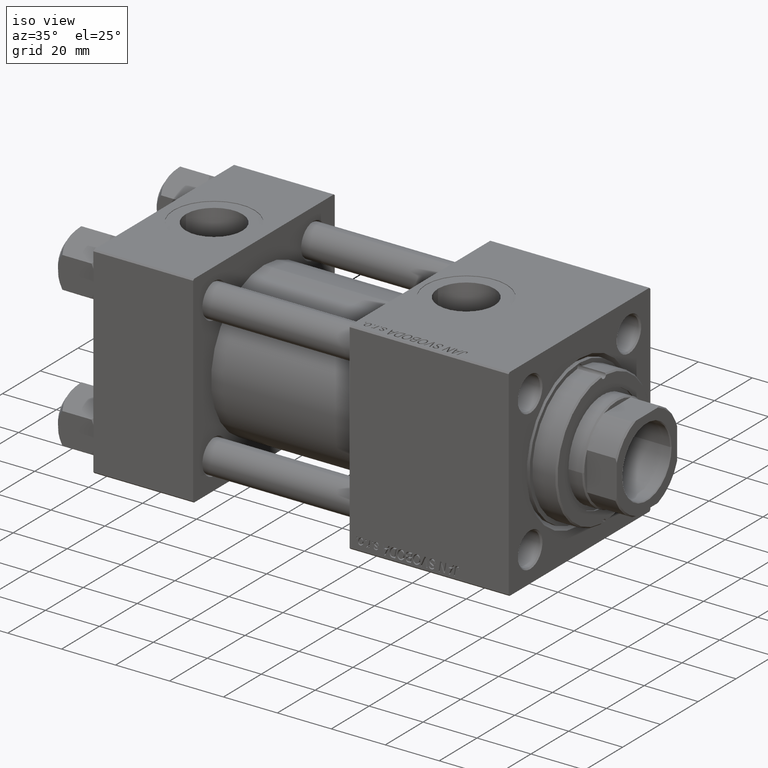
[diagram: clean part render]
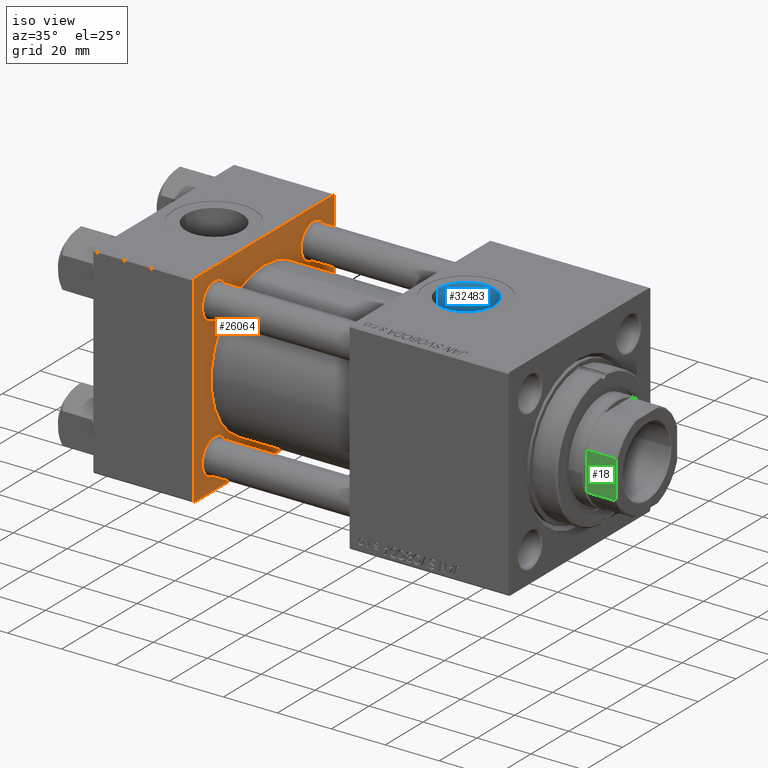
[diagram: same view with three faces highlighted in distinct colors, each labeled with its STEP entity id]
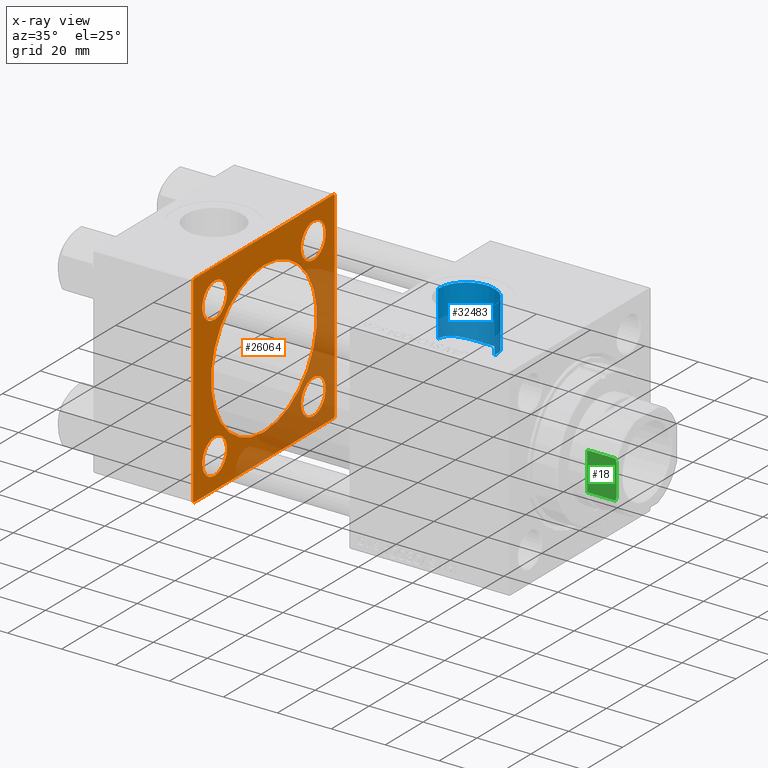
[diagram: x-ray of the same camera — body ghosted, the three highlighted faces saturated]
A machine part, iso view with three faces highlighted in distinct colors.
The next image is the same camera in x-ray (body ghosted, the three faces saturated) — at least one of them is partly hidden behind the body in this view.
Their STEP definitions:

[orange] entity #26064 — the highlighted planar face has unit normal (-1, 0, 0).
#815 = DIRECTION ( 'NONE',  ( 1.000000000000000000, -0.000000000000000000, 0.000000000000000000 ) ) ;
#1337 = DIRECTION ( 'NONE',  ( -0.000000000000000000, -0.7071067811865474617, -0.7071067811865474617 ) ) ;
#1445 = EDGE_CURVE ( 'NONE', #45019, #11600, #33661, .T. ) ;
#1635 = AXIS2_PLACEMENT_3D ( 'NONE', #13740, #44375, #19711 ) ;
#1783 = FACE_BOUND ( 'NONE', #27757, .T. ) ;
#1915 = CIRCLE ( 'NONE', #49958, 28.00000000000000000 ) ;
#2444 = CIRCLE ( 'NONE', #30951, 6.500000000000030198 ) ;
#2538 = EDGE_CURVE ( 'NONE', #39165, #22679, #7704, .T. ) ;
#2786 = AXIS2_PLACEMENT_3D ( 'NONE', #9745, #36550, #28889 ) ;
#3070 = CARTESIAN_POINT ( 'NONE',  ( 37.00000000000000000, -26.14999999999999147, 26.15000000000000924 ) ) ;
#3178 = ORIENTED_EDGE ( 'NONE', *, *, #31151, .T. ) ;
#3328 = DIRECTION ( 'NONE',  ( -1.000000000000000000, 0.000000000000000000, -0.000000000000000000 ) ) ;
#4633 = DIRECTION ( 'NONE',  ( 1.000000000000000000, -0.000000000000000000, 0.000000000000000000 ) ) ;
#4734 = AXIS2_PLACEMENT_3D ( 'NONE', #20117, #32352, #27264 ) ;
#5357 = FACE_BOUND ( 'NONE', #47574, .T. ) ;
#5376 = AXIS2_PLACEMENT_3D ( 'NONE', #29157, #21244, #25820 ) ;
#6044 = EDGE_CURVE ( 'NONE', #25301, #7935, #42506, .T. ) ;
#7016 = CARTESIAN_POINT ( 'NONE',  ( 37.00000000000000000, -26.14999999999999147, -19.65000000000000924 ) ) ;
#7033 = CARTESIAN_POINT ( 'NONE',  ( 37.00000000000000000, -37.00000000000002132, -37.50000000000000711 ) ) ;
#7090 = AXIS2_PLACEMENT_3D ( 'NONE', #47476, #815, #12521 ) ;
#7483 = AXIS2_PLACEMENT_3D ( 'NONE', #3070, #3328, #45414 ) ;
#7704 = LINE ( 'NONE', #11256, #35093 ) ;
#7935 = VERTEX_POINT ( 'NONE', #43436 ) ;
#7939 = EDGE_CURVE ( 'NONE', #22679, #18021, #47255, .T. ) ;
#8077 = CARTESIAN_POINT ( 'NONE',  ( 37.00000000000000000, 36.99999999999997868, -37.50000000000000000 ) ) ;
#8178 = DIRECTION ( 'NONE',  ( -0.000000000000000000, 0.7071067811865474617, 0.7071067811865474617 ) ) ;
#8834 = LINE ( 'NONE', #48090, #16321 ) ;
#9223 = VECTOR ( 'NONE', #39842, 1000.000000000000114 ) ;
#9745 = CARTESIAN_POINT ( 'NONE',  ( 37.00000000000000000, -26.14999999999999147, -26.15000000000000924 ) ) ;
#9995 = DIRECTION ( 'NONE',  ( 0.000000000000000000, 0.000000000000000000, 1.000000000000000000 ) ) ;
#10810 = CARTESIAN_POINT ( 'NONE',  ( 37.00000000000000000, 36.99999999999999289, 37.50000000000000000 ) ) ;
#10943 = DIRECTION ( 'NONE',  ( 0.000000000000000000, -1.000000000000000000, -9.251858538542972814E-17 ) ) ;
#11256 = CARTESIAN_POINT ( 'NONE',  ( 37.00000000000000000, 37.49999999999999289, 37.50000000000000000 ) ) ;
#11309 = LINE ( 'NONE', #18706, #45929 ) ;
#11480 = CIRCLE ( 'NONE', #41640, 6.500000000000030198 ) ;
#11542 = ORIENTED_EDGE ( 'NONE', *, *, #17813, .F. ) ;
#11557 = ORIENTED_EDGE ( 'NONE', *, *, #20305, .T. ) ;
#11600 = VERTEX_POINT ( 'NONE', #7033 ) ;
#12035 = CARTESIAN_POINT ( 'NONE',  ( 37.00000000000000000, 26.14999999999999858, -32.65000000000003411 ) ) ;
#12107 = CARTESIAN_POINT ( 'NONE',  ( 37.00000000000000000, 26.14999999999999858, 32.65000000000004121 ) ) ;
#12299 = CARTESIAN_POINT ( 'NONE',  ( 37.00000000000000000, -37.50000000000000711, 36.99999999999999289 ) ) ;
#12521 = DIRECTION ( 'NONE',  ( 0.000000000000000000, 0.000000000000000000, 1.000000000000000000 ) ) ;
#12744 = ORIENTED_EDGE ( 'NONE', *, *, #14803, .F. ) ;
#12758 = CARTESIAN_POINT ( 'NONE',  ( 37.00000000000000000, -2.602085213965210642E-15, 0.000000000000000000 ) ) ;
#12871 = EDGE_CURVE ( 'NONE', #44883, #39165, #20453, .T. ) ;
#13144 = DIRECTION ( 'NONE',  ( 0.000000000000000000, 9.251858538542971581E-17, -1.000000000000000000 ) ) ;
#13243 = VECTOR ( 'NONE', #17260, 1000.000000000000000 ) ;
#13475 = ORIENTED_EDGE ( 'NONE', *, *, #46439, .T. ) ;
#13672 = EDGE_CURVE ( 'NONE', #27521, #11600, #41224, .T. ) ;
#13740 = CARTESIAN_POINT ( 'NONE',  ( 37.00000000000000000, 0.000000000000000000, 0.000000000000000000 ) ) ;
#14703 = VECTOR ( 'NONE', #1337, 1000.000000000000114 ) ;
#14803 = EDGE_CURVE ( 'NONE', #31656, #20217, #1915, .T. ) ;
#15593 = DIRECTION ( 'NONE',  ( 0.000000000000000000, -1.000000000000000000, -9.251858538542971581E-17 ) ) ;
#15684 = ORIENTED_EDGE ( 'NONE', *, *, #1445, .F. ) ;
#16105 = EDGE_CURVE ( 'NONE', #43837, #22451, #43663, .T. ) ;
#16321 = VECTOR ( 'NONE', #13144, 1000.000000000000000 ) ;
#17070 = EDGE_LOOP ( 'NONE', ( #12744, #11542 ) ) ;
#17260 = DIRECTION ( 'NONE',  ( 0.000000000000000000, 0.7071067811865524577, -0.7071067811865426878 ) ) ;
#17813 = EDGE_CURVE ( 'NONE', #20217, #31656, #31507, .T. ) ;
#18004 = CARTESIAN_POINT ( 'NONE',  ( 37.00000000000000000, -37.00000000000002132, -37.50000000000000711 ) ) ;
#18021 = VERTEX_POINT ( 'NONE', #26753 ) ;
#18706 = CARTESIAN_POINT ( 'NONE',  ( 37.00000000000000000, 37.49999999999999289, 37.50000000000000000 ) ) ;
#18931 = EDGE_LOOP ( 'NONE', ( #28279, #32556 ) ) ;
#19293 = DIRECTION ( 'NONE',  ( 0.000000000000000000, 0.000000000000000000, 1.000000000000000000 ) ) ;
#19711 = DIRECTION ( 'NONE',  ( -0.000000000000000000, 0.000000000000000000, 1.000000000000000000 ) ) ;
#20117 = CARTESIAN_POINT ( 'NONE',  ( 37.00000000000000000, -26.14999999999999147, -26.15000000000000924 ) ) ;
#20199 = CARTESIAN_POINT ( 'NONE',  ( 37.00000000000000000, -37.00000000000000711, 37.49999999999999289 ) ) ;
#20209 = CARTESIAN_POINT ( 'NONE',  ( 37.00000000000000000, 36.99999999999999289, 37.50000000000000000 ) ) ;
#20217 = VERTEX_POINT ( 'NONE', #46402 ) ;
#20305 = EDGE_CURVE ( 'NONE', #24228, #48644, #38915, .T. ) ;
#20453 = LINE ( 'NONE', #20209, #9223 ) ;
#20603 = ORIENTED_EDGE ( 'NONE', *, *, #6044, .T. ) ;
#21244 = DIRECTION ( 'NONE',  ( -1.000000000000000000, 0.000000000000000000, -0.000000000000000000 ) ) ;
#21405 = EDGE_CURVE ( 'NONE', #23197, #48202, #28348, .T. ) ;
#21668 = CIRCLE ( 'NONE', #5376, 6.500000000000008882 ) ;
#21930 = CARTESIAN_POINT ( 'NONE',  ( 37.00000000000000000, -2.602085213965210642E-15, 28.00000000000000000 ) ) ;
#22451 = VERTEX_POINT ( 'NONE', #12035 ) ;
#22503 = ORIENTED_EDGE ( 'NONE', *, *, #2538, .T. ) ;
#22679 = VERTEX_POINT ( 'NONE', #20199 ) ;
#23134 = CARTESIAN_POINT ( 'NONE',  ( 37.00000000000000000, 26.14999999999999858, 26.15000000000000213 ) ) ;
#23197 = VERTEX_POINT ( 'NONE', #12107 ) ;
#23795 = CARTESIAN_POINT ( 'NONE',  ( 37.00000000000000000, -26.14999999999999147, -32.65000000000001279 ) ) ;
#23890 = DIRECTION ( 'NONE',  ( -1.000000000000000000, 0.000000000000000000, -0.000000000000000000 ) ) ;
#24228 = VERTEX_POINT ( 'NONE', #23795 ) ;
#24761 = ORIENTED_EDGE ( 'NONE', *, *, #32879, .T. ) ;
#25301 = VERTEX_POINT ( 'NONE', #32382 ) ;
#25478 = FACE_OUTER_BOUND ( 'NONE', #44547, .T. ) ;
#25820 = DIRECTION ( 'NONE',  ( 0.000000000000000000, 0.000000000000000000, 1.000000000000000000 ) ) ;
#25904 = EDGE_CURVE ( 'NONE', #48202, #23197, #2444, .T. ) ;
#26064 = ADVANCED_FACE ( 'NONE', ( #1783, #5357, #32639, #33142, #35293, #25478 ), #48692, .F. ) ;
#26400 = CIRCLE ( 'NONE', #2786, 6.500000000000002665 ) ;
#26753 = CARTESIAN_POINT ( 'NONE',  ( 37.00000000000000000, -37.50000000000000711, 36.99999999999999289 ) ) ;
#27264 = DIRECTION ( 'NONE',  ( 0.000000000000000000, 0.000000000000000000, 1.000000000000000000 ) ) ;
#27521 = VERTEX_POINT ( 'NONE', #47481 ) ;
#27757 = EDGE_LOOP ( 'NONE', ( #11557, #29953 ) ) ;
#28279 = ORIENTED_EDGE ( 'NONE', *, *, #25904, .T. ) ;
#28348 = CIRCLE ( 'NONE', #35731, 6.500000000000030198 ) ;
#28837 = DIRECTION ( 'NONE',  ( 0.000000000000000000, 0.000000000000000000, 1.000000000000000000 ) ) ;
#28889 = DIRECTION ( 'NONE',  ( 0.000000000000000000, 0.000000000000000000, 1.000000000000000000 ) ) ;
#29157 = CARTESIAN_POINT ( 'NONE',  ( 37.00000000000000000, -26.14999999999999147, 26.15000000000000924 ) ) ;
#29953 = ORIENTED_EDGE ( 'NONE', *, *, #43978, .T. ) ;
#30130 = ORIENTED_EDGE ( 'NONE', *, *, #7939, .T. ) ;
#30452 = DIRECTION ( 'NONE',  ( -1.000000000000000000, 0.000000000000000000, -0.000000000000000000 ) ) ;
#30951 = AXIS2_PLACEMENT_3D ( 'NONE', #42682, #30452, #39100 ) ;
#31151 = EDGE_CURVE ( 'NONE', #18021, #27521, #8834, .T. ) ;
#31217 = ORIENTED_EDGE ( 'NONE', *, *, #16105, .T. ) ;
#31507 = CIRCLE ( 'NONE', #7090, 28.00000000000000000 ) ;
#31645 = LINE ( 'NONE', #47193, #46674 ) ;
#31656 = VERTEX_POINT ( 'NONE', #21930 ) ;
#31680 = ORIENTED_EDGE ( 'NONE', *, *, #12871, .T. ) ;
#32048 = CARTESIAN_POINT ( 'NONE',  ( 37.00000000000000000, 26.14999999999999858, -26.15000000000000213 ) ) ;
#32352 = DIRECTION ( 'NONE',  ( -1.000000000000000000, 0.000000000000000000, -0.000000000000000000 ) ) ;
#32382 = CARTESIAN_POINT ( 'NONE',  ( 37.00000000000000000, -26.14999999999999147, 19.65000000000000213 ) ) ;
#32556 = ORIENTED_EDGE ( 'NONE', *, *, #21405, .T. ) ;
#32639 = FACE_BOUND ( 'NONE', #50144, .T. ) ;
#32710 = CARTESIAN_POINT ( 'NONE',  ( 37.00000000000000000, 26.14999999999999858, -26.15000000000000213 ) ) ;
#32879 = EDGE_CURVE ( 'NONE', #22451, #43837, #11480, .T. ) ;
#33142 = FACE_BOUND ( 'NONE', #18931, .T. ) ;
#33661 = LINE ( 'NONE', #41298, #40707 ) ;
#34554 = DIRECTION ( 'NONE',  ( 0.000000000000000000, 0.000000000000000000, -1.000000000000000000 ) ) ;
#35093 = VECTOR ( 'NONE', #15593, 1000.000000000000000 ) ;
#35293 = FACE_BOUND ( 'NONE', #17070, .T. ) ;
#35731 = AXIS2_PLACEMENT_3D ( 'NONE', #23134, #42019, #19293 ) ;
#36457 = EDGE_CURVE ( 'NONE', #45019, #39321, #31645, .T. ) ;
#36550 = DIRECTION ( 'NONE',  ( -1.000000000000000000, 0.000000000000000000, -0.000000000000000000 ) ) ;
#37292 = ORIENTED_EDGE ( 'NONE', *, *, #40003, .F. ) ;
#37447 = CARTESIAN_POINT ( 'NONE',  ( 37.00000000000000000, 26.14999999999999858, 19.64999999999997016 ) ) ;
#37968 = AXIS2_PLACEMENT_3D ( 'NONE', #32048, #23890, #39691 ) ;
#38915 = CIRCLE ( 'NONE', #4734, 6.500000000000002665 ) ;
#39100 = DIRECTION ( 'NONE',  ( 0.000000000000000000, 0.000000000000000000, 1.000000000000000000 ) ) ;
#39165 = VERTEX_POINT ( 'NONE', #10810 ) ;
#39321 = VERTEX_POINT ( 'NONE', #40536 ) ;
#39691 = DIRECTION ( 'NONE',  ( 0.000000000000000000, 0.000000000000000000, 1.000000000000000000 ) ) ;
#39842 = DIRECTION ( 'NONE',  ( 0.000000000000000000, -0.7071067811865474617, 0.7071067811865474617 ) ) ;
#40003 = EDGE_CURVE ( 'NONE', #44883, #39321, #11309, .T. ) ;
#40349 = DIRECTION ( 'NONE',  ( -1.000000000000000000, 0.000000000000000000, -0.000000000000000000 ) ) ;
#40536 = CARTESIAN_POINT ( 'NONE',  ( 37.00000000000000000, 37.49999999999999289, -36.99999999999998579 ) ) ;
#40707 = VECTOR ( 'NONE', #10943, 1000.000000000000000 ) ;
#41213 = ORIENTED_EDGE ( 'NONE', *, *, #13672, .T. ) ;
#41224 = LINE ( 'NONE', #18004, #13243 ) ;
#41298 = CARTESIAN_POINT ( 'NONE',  ( 37.00000000000000000, 37.49999999999999289, -37.50000000000000000 ) ) ;
#41640 = AXIS2_PLACEMENT_3D ( 'NONE', #32710, #40349, #9995 ) ;
#42019 = DIRECTION ( 'NONE',  ( -1.000000000000000000, 0.000000000000000000, -0.000000000000000000 ) ) ;
#42506 = CIRCLE ( 'NONE', #7483, 6.500000000000008882 ) ;
#42682 = CARTESIAN_POINT ( 'NONE',  ( 37.00000000000000000, 26.14999999999999858, 26.15000000000000213 ) ) ;
#43436 = CARTESIAN_POINT ( 'NONE',  ( 37.00000000000000000, -26.14999999999999147, 32.65000000000001990 ) ) ;
#43663 = CIRCLE ( 'NONE', #37968, 6.500000000000030198 ) ;
#43837 = VERTEX_POINT ( 'NONE', #47022 ) ;
#43978 = EDGE_CURVE ( 'NONE', #48644, #24228, #26400, .T. ) ;
#44076 = CARTESIAN_POINT ( 'NONE',  ( 37.00000000000000000, 37.49999999999999289, 37.00000000000000000 ) ) ;
#44375 = DIRECTION ( 'NONE',  ( -1.000000000000000000, 0.000000000000000000, -0.000000000000000000 ) ) ;
#44547 = EDGE_LOOP ( 'NONE', ( #15684, #48122, #37292, #31680, #22503, #30130, #3178, #41213 ) ) ;
#44883 = VERTEX_POINT ( 'NONE', #44076 ) ;
#45019 = VERTEX_POINT ( 'NONE', #8077 ) ;
#45414 = DIRECTION ( 'NONE',  ( 0.000000000000000000, 0.000000000000000000, 1.000000000000000000 ) ) ;
#45929 = VECTOR ( 'NONE', #34554, 1000.000000000000000 ) ;
#46402 = CARTESIAN_POINT ( 'NONE',  ( 37.00000000000000000, 8.269258236473776482E-16, -28.00000000000000000 ) ) ;
#46439 = EDGE_CURVE ( 'NONE', #7935, #25301, #21668, .T. ) ;
#46674 = VECTOR ( 'NONE', #8178, 1000.000000000000114 ) ;
#47022 = CARTESIAN_POINT ( 'NONE',  ( 37.00000000000000000, 26.14999999999999858, -19.64999999999997371 ) ) ;
#47193 = CARTESIAN_POINT ( 'NONE',  ( 37.00000000000000000, 37.49999999999999289, -36.99999999999998579 ) ) ;
#47255 = LINE ( 'NONE', #12299, #14703 ) ;
#47476 = CARTESIAN_POINT ( 'NONE',  ( 37.00000000000000000, -2.602085213965210642E-15, 0.000000000000000000 ) ) ;
#47481 = CARTESIAN_POINT ( 'NONE',  ( 37.00000000000000000, -37.50000000000000000, -37.00000000000003553 ) ) ;
#47574 = EDGE_LOOP ( 'NONE', ( #24761, #31217 ) ) ;
#48090 = CARTESIAN_POINT ( 'NONE',  ( 37.00000000000000000, -37.50000000000000711, 37.49999999999999289 ) ) ;
#48122 = ORIENTED_EDGE ( 'NONE', *, *, #36457, .T. ) ;
#48202 = VERTEX_POINT ( 'NONE', #37447 ) ;
#48644 = VERTEX_POINT ( 'NONE', #7016 ) ;
#48692 = PLANE ( 'NONE',  #1635 ) ;
#49958 = AXIS2_PLACEMENT_3D ( 'NONE', #12758, #4633, #28837 ) ;
#50144 = EDGE_LOOP ( 'NONE', ( #20603, #13475 ) ) ;

[blue] entity #32483 — the highlighted cylindrical surface (edge-blend (fillet) strip) has radius 10.48 mm, axis along (0, 0, -1).
#1383 = CYLINDRICAL_SURFACE ( 'NONE', #47364, 10.48000000000000398 ) ;
#2756 = CARTESIAN_POINT ( 'NONE',  ( 101.5199999999999960, -8.522187221514314994E-15, 20.50000000000000000 ) ) ;
#2999 = CARTESIAN_POINT ( 'NONE',  ( 122.4800000000000040, -5.655464058400799734E-15, 60.29999999999998295 ) ) ;
#3032 = CARTESIAN_POINT ( 'NONE',  ( 103.4994615249995888, 6.139005141183927705, 19.56143105420016681 ) ) ;
#3290 = CARTESIAN_POINT ( 'NONE',  ( 122.4111999661127896, 1.387573566795220259, 20.46456553337858608 ) ) ;
#3457 = VECTOR ( 'NONE', #6572, 1000.000000000000000 ) ;
#3545 = CARTESIAN_POINT ( 'NONE',  ( 119.8841991131332492, 6.936938536499984487, 19.29736706481580910 ) ) ;
#3801 = CARTESIAN_POINT ( 'NONE',  ( 109.5844666488367523, 10.20370056431730532, 17.78034809007779415 ) ) ;
#4054 = CARTESIAN_POINT ( 'NONE',  ( 122.2039809949709621, 2.414784284089436461, 20.36018829921812312 ) ) ;
#6572 = DIRECTION ( 'NONE',  ( 0.000000000000000000, 0.000000000000000000, -1.000000000000000000 ) ) ;
#6653 = ORIENTED_EDGE ( 'NONE', *, *, #34667, .T. ) ;
#7106 = CARTESIAN_POINT ( 'NONE',  ( 103.7041966693601154, 6.412812401408074514, 19.47310258086861623 ) ) ;
#7364 = CARTESIAN_POINT ( 'NONE',  ( 104.3608080663192226, 7.182330360178248441, 19.20231315409300876 ) ) ;
#7626 = CARTESIAN_POINT ( 'NONE',  ( 111.2910039798671988, 10.47927568230745443, 17.61915951098717059 ) ) ;
#7873 = CARTESIAN_POINT ( 'NONE',  ( 104.1344073689295442, 6.933755718105402366, 19.29375335859577945 ) ) ;
#8424 = B_SPLINE_CURVE_WITH_KNOTS ( 'NONE', 3,
 ( #26727, #19590, #30328, #42302, #18822, #42563, #42051, #34412, #19328, #3032, #7106, #7873, #7364, #15509, #11178, #34918, #18564, #27247, #34158, #11687, #14752, #15007, #3801, #46645, #7626, #34668, #38227, #50463, #49959, #31099, #38485, #45881, #23415, #49704, #10935, #26479, #30584, #38981, #46131, #3545, #19073, #50211, #15254, #30837, #22645, #26992, #4054, #3290, #46384, #11429 ),
 .UNSPECIFIED., .F., .F.,
 ( 4, 2, 2, 2, 2, 2, 2, 2, 2, 2, 2, 2, 2, 2, 2, 2, 2, 2, 2, 2, 2, 2, 2, 2, 4 ),
 ( 2.336479298790575875E-18, 0.002085371848011686405, 0.003128057772017527657, 0.004170743696023369342, 0.006256115544035068324, 0.007298801468040917381, 0.008341487392046766439, 0.009384173316052617231, 0.01042685924005846455, 0.01251223108807019563, 0.01355491701207607938, 0.01459760293608196140, 0.01668297478409377574, 0.01772566070809969765, 0.01876834663210562304, 0.01981103255611154496, 0.02085371848011746687, 0.02293909032812935581, 0.02398177625213530201, 0.02502446217614124127, 0.02710983402415310592, 0.02919520587216496363, 0.03023789179617089595, 0.03128057772017682481, 0.03336594956818868252 ),
 .UNSPECIFIED. ) ;
#8697 = VERTEX_POINT ( 'NONE', #30451 ) ;
#10683 = ORIENTED_EDGE ( 'NONE', *, *, #45051, .F. ) ;
#10935 = CARTESIAN_POINT ( 'NONE',  ( 117.2820573345585160, 9.076872237721246961, 18.38571804596834625 ) ) ;
#11040 = CIRCLE ( 'NONE', #17546, 10.48000000000000398 ) ;
#11178 = CARTESIAN_POINT ( 'NONE',  ( 105.0851776230415453, 7.882226429758168784, 18.92550904926250865 ) ) ;
#11429 = CARTESIAN_POINT ( 'NONE',  ( 122.4800000000000040, 2.510525976792046767E-15, 20.50000000000000000 ) ) ;
#11687 = CARTESIAN_POINT ( 'NONE',  ( 108.2605295482912595, 9.796046444661111963, 18.00860180445792835 ) ) ;
#14125 = CARTESIAN_POINT ( 'NONE',  ( 122.4800000000000040, 2.510525976792046767E-15, 20.50000000000000000 ) ) ;
#14752 = CARTESIAN_POINT ( 'NONE',  ( 108.5827044152010075, 9.913257743980489423, 17.94410793545391059 ) ) ;
#15007 = CARTESIAN_POINT ( 'NONE',  ( 109.2453258533809333, 10.11742845580953443, 17.82978771997537137 ) ) ;
#15254 = CARTESIAN_POINT ( 'NONE',  ( 121.4004974859918349, 4.682576587287047509, 19.96836060444810101 ) ) ;
#15509 = CARTESIAN_POINT ( 'NONE',  ( 104.8361938724689111, 7.656566108217144340, 19.01819379702216395 ) ) ;
#15982 = VERTEX_POINT ( 'NONE', #2756 ) ;
#16673 = DIRECTION ( 'NONE',  ( -1.000000000000000000, 0.000000000000000000, 0.000000000000000000 ) ) ;
#17546 = AXIS2_PLACEMENT_3D ( 'NONE', #19022, #23617, #34866 ) ;
#18564 = CARTESIAN_POINT ( 'NONE',  ( 105.8804737050766107, 8.514500867498458803, 18.64931045191754677 ) ) ;
#18822 = CARTESIAN_POINT ( 'NONE',  ( 101.8817856378111628, 2.751972056903263741, 20.31723222319772404 ) ) ;
#19022 = CARTESIAN_POINT ( 'NONE',  ( 112.0000000000000000, -6.938893903907226011E-15, 37.29999999999998295 ) ) ;
#19073 = CARTESIAN_POINT ( 'NONE',  ( 120.3133438460494489, 6.417723730979731478, 19.47855006749640694 ) ) ;
#19328 = CARTESIAN_POINT ( 'NONE',  ( 102.9281433422187888, 5.291159677655632443, 19.81417435353765555 ) ) ;
#19590 = CARTESIAN_POINT ( 'NONE',  ( 101.5200000000000102, 0.7059292743811345083, 20.49999999999998934 ) ) ;
#20661 = EDGE_LOOP ( 'NONE', ( #23813, #10683, #6653, #39147 ) ) ;
#22363 = LINE ( 'NONE', #2999, #3457 ) ;
#22645 = CARTESIAN_POINT ( 'NONE',  ( 121.9134797944147266, 3.416556018164091935, 20.21605419410972360 ) ) ;
#23415 = CARTESIAN_POINT ( 'NONE',  ( 115.7346670001018083, 9.797999703728088150, 18.00755135371406013 ) ) ;
#23617 = DIRECTION ( 'NONE',  ( -0.000000000000000000, -0.000000000000000000, -1.000000000000000000 ) ) ;
#23813 = ORIENTED_EDGE ( 'NONE', *, *, #35552, .F. ) ;
#24582 = CARTESIAN_POINT ( 'NONE',  ( 112.0000000000000000, -6.938893903907226011E-15, 60.29999999999998295 ) ) ;
#24675 = EDGE_CURVE ( 'NONE', #15982, #42791, #8424, .T. ) ;
#26021 = VERTEX_POINT ( 'NONE', #29318 ) ;
#26433 = LINE ( 'NONE', #29776, #41714 ) ;
#26479 = CARTESIAN_POINT ( 'NONE',  ( 118.1258991483475000, 8.509911541881283625, 18.65140651454457554 ) ) ;
#26727 = CARTESIAN_POINT ( 'NONE',  ( 101.5199999999999960, -8.522187221514314994E-15, 20.50000000000000000 ) ) ;
#26992 = CARTESIAN_POINT ( 'NONE',  ( 122.1171069833620351, 2.755736371050359068, 20.31668327404119623 ) ) ;
#27247 = CARTESIAN_POINT ( 'NONE',  ( 106.7250863903656324, 9.081045908839906033, 18.38365106881856903 ) ) ;
#28667 = FACE_OUTER_BOUND ( 'NONE', #20661, .T. ) ;
#29318 = CARTESIAN_POINT ( 'NONE',  ( 122.4800000000000040, -5.655464058400800522E-15, 37.29999999999998295 ) ) ;
#29776 = CARTESIAN_POINT ( 'NONE',  ( 101.5199999999999960, -6.938893903907226011E-15, 60.29999999999998295 ) ) ;
#30328 = CARTESIAN_POINT ( 'NONE',  ( 101.5905792072285152, 1.397808168755529268, 20.46366514614362941 ) ) ;
#30451 = CARTESIAN_POINT ( 'NONE',  ( 101.5199999999999960, -6.938893903907226011E-15, 37.29999999999998295 ) ) ;
#30584 = CARTESIAN_POINT ( 'NONE',  ( 118.3998192419224722, 8.305855936120723371, 18.74346718738526718 ) ) ;
#30837 = CARTESIAN_POINT ( 'NONE',  ( 121.7963195694986211, 3.738835649269056205, 20.15872255796546497 ) ) ;
#31099 = CARTESIAN_POINT ( 'NONE',  ( 114.4123314728801120, 10.20445256356848596, 17.77991583748153914 ) ) ;
#32483 = ADVANCED_FACE ( 'NONE', ( #28667 ), #1383, .F. ) ;
#34158 = CARTESIAN_POINT ( 'NONE',  ( 107.3192332810963592, 9.401270326070079619, 18.21963709424768041 ) ) ;
#34365 = DIRECTION ( 'NONE',  ( 0.000000000000000000, 0.000000000000000000, -1.000000000000000000 ) ) ;
#34412 = CARTESIAN_POINT ( 'NONE',  ( 102.6044737504641375, 4.693145010131121175, 19.96599966668495085 ) ) ;
#34667 = EDGE_CURVE ( 'NONE', #8697, #15982, #26433, .T. ) ;
#34668 = CARTESIAN_POINT ( 'NONE',  ( 112.3383151790434340, 10.48035382919965208, 17.61851820641091138 ) ) ;
#34866 = DIRECTION ( 'NONE',  ( 1.000000000000000000, 0.000000000000000000, 0.000000000000000000 ) ) ;
#34918 = CARTESIAN_POINT ( 'NONE',  ( 105.6065573369533865, 8.310725173485080219, 18.74129753657673092 ) ) ;
#35552 = EDGE_CURVE ( 'NONE', #26021, #42791, #22363, .T. ) ;
#36080 = DIRECTION ( 'NONE',  ( 0.000000000000000000, 0.000000000000000000, -1.000000000000000000 ) ) ;
#38227 = CARTESIAN_POINT ( 'NONE',  ( 112.6923943345972532, 10.46297416512450162, 17.62889126461535128 ) ) ;
#38485 = CARTESIAN_POINT ( 'NONE',  ( 114.7469934192376684, 10.11947292826133626, 17.82862250975704654 ) ) ;
#38981 = CARTESIAN_POINT ( 'NONE',  ( 118.9223547581159721, 7.875654497479071203, 18.92825589621288174 ) ) ;
#39147 = ORIENTED_EDGE ( 'NONE', *, *, #24675, .T. ) ;
#41714 = VECTOR ( 'NONE', #34365, 1000.000000000000000 ) ;
#42051 = CARTESIAN_POINT ( 'NONE',  ( 102.2055746244945738, 3.743983501781743328, 20.15779689679484221 ) ) ;
#42302 = CARTESIAN_POINT ( 'NONE',  ( 101.7963906697739418, 2.415912636154256887, 20.36000321358038079 ) ) ;
#42563 = CARTESIAN_POINT ( 'NONE',  ( 102.0867390608468952, 3.417436119877227174, 20.21594434548826058 ) ) ;
#42791 = VERTEX_POINT ( 'NONE', #14125 ) ;
#45051 = EDGE_CURVE ( 'NONE', #8697, #26021, #11040, .T. ) ;
#45881 = CARTESIAN_POINT ( 'NONE',  ( 115.4073549067260274, 9.916634395335904628, 17.94223718521384470 ) ) ;
#46131 = CARTESIAN_POINT ( 'NONE',  ( 119.1715154115444193, 7.649352566110291463, 19.02110086963149627 ) ) ;
#46384 = CARTESIAN_POINT ( 'NONE',  ( 122.4800000000000466, 0.6967823640873020974, 20.50000000000000000 ) ) ;
#46645 = CARTESIAN_POINT ( 'NONE',  ( 110.6027042192149423, 10.40949522351232837, 17.66118746953340590 ) ) ;
#47364 = AXIS2_PLACEMENT_3D ( 'NONE', #24582, #36080, #16673 ) ;
#49704 = CARTESIAN_POINT ( 'NONE',  ( 116.6856175630587984, 9.399358022566021376, 18.22067190218963262 ) ) ;
#49959 = CARTESIAN_POINT ( 'NONE',  ( 113.7337807232017184, 10.34138286985940880, 17.70062314295812911 ) ) ;
#50211 = CARTESIAN_POINT ( 'NONE',  ( 121.0774436320738374, 5.281939122741830417, 19.81671541206548781 ) ) ;
#50463 = CARTESIAN_POINT ( 'NONE',  ( 113.3898925283612868, 10.39333618499134992, 17.67003674431504123 ) ) ;

[green] entity #18 — the highlighted planar face has unit normal (0, 1, 0).
#18 = ADVANCED_FACE ( 'NONE', ( #18389 ), #22467, .F. ) ;
#176 = CARTESIAN_POINT ( 'NONE',  ( 16.00000000000000000, -6.645462757301138446, 141.6795515649600361 ) ) ;
#1765 = VECTOR ( 'NONE', #36237, 1000.000000000000000 ) ;
#4094 = CARTESIAN_POINT ( 'NONE',  ( 15.99999999999999645, -7.088723439378925129, 131.0000000000000284 ) ) ;
#4115 = CARTESIAN_POINT ( 'NONE',  ( 16.00000000000000000, 5.744562646538024175, 142.0000000000000284 ) ) ;
#4475 = ORIENTED_EDGE ( 'NONE', *, *, #43211, .T. ) ;
#5692 = EDGE_CURVE ( 'NONE', #6058, #42946, #24827, .T. ) ;
#6058 = VERTEX_POINT ( 'NONE', #4094 ) ;
#6955 = CARTESIAN_POINT ( 'NONE',  ( 15.99999999999999645, 7.088723439378923352, -0.001000000000001000089 ) ) ;
#7568 = CARTESIAN_POINT ( 'NONE',  ( 15.99999999999999645, -7.088723439378925129, 141.5000000000000284 ) ) ;
#7681 = CARTESIAN_POINT ( 'NONE',  ( 15.99999999999999645, 6.645462757301124235, 141.6795515649600077 ) ) ;
#9078 = VECTOR ( 'NONE', #21748, 1000.000000000000000 ) ;
#9492 = VERTEX_POINT ( 'NONE', #42432 ) ;
#9810 = ORIENTED_EDGE ( 'NONE', *, *, #5692, .T. ) ;
#9998 = EDGE_CURVE ( 'NONE', #44324, #9492, #16822, .T. ) ;
#10707 = CARTESIAN_POINT ( 'NONE',  ( 15.99999999999999645, -7.088723439378925129, 141.5000000000000284 ) ) ;
#11628 = CARTESIAN_POINT ( 'NONE',  ( 16.00000000000000000, -6.197659614356056501, 141.8468915343184165 ) ) ;
#11746 = CARTESIAN_POINT ( 'NONE',  ( 15.99999999999999645, 6.197659614356056501, 141.8468915343184165 ) ) ;
#13349 = CARTESIAN_POINT ( 'NONE',  ( 15.99999999999999645, 7.088723439378923352, 141.5000000000000284 ) ) ;
#15074 = DIRECTION ( 'NONE',  ( 1.084202172485504557E-16, -1.000000000000000000, 0.000000000000000000 ) ) ;
#15710 = CARTESIAN_POINT ( 'NONE',  ( 16.00000000000000000, -5.744562646538022399, 142.0000000000000284 ) ) ;
#16780 = EDGE_CURVE ( 'NONE', #44324, #47857, #30260, .T. ) ;
#16822 = LINE ( 'NONE', #28570, #1765 ) ;
#18389 = FACE_OUTER_BOUND ( 'NONE', #23081, .T. ) ;
#19290 = LINE ( 'NONE', #47113, #43742 ) ;
#19508 = ORIENTED_EDGE ( 'NONE', *, *, #48993, .T. ) ;
#21748 = DIRECTION ( 'NONE',  ( -1.084202172485504434E-16, 1.000000000000000000, -0.000000000000000000 ) ) ;
#22467 = PLANE ( 'NONE',  #25994 ) ;
#23081 = EDGE_LOOP ( 'NONE', ( #19508, #4475, #26952, #43315, #33564, #9810 ) ) ;
#24827 = LINE ( 'NONE', #44473, #9078 ) ;
#25994 = AXIS2_PLACEMENT_3D ( 'NONE', #34738, #50281, #15074 ) ;
#26571 = LINE ( 'NONE', #6955, #44549 ) ;
#26612 = B_SPLINE_CURVE_WITH_KNOTS ( 'NONE', 3,
 ( #34977, #7681, #11746, #4115 ),
 .UNSPECIFIED., .F., .F.,
 ( 4, 4 ),
 ( 0.000000000000000000, 0.001434143729551077889 ),
 .UNSPECIFIED. ) ;
#26952 = ORIENTED_EDGE ( 'NONE', *, *, #9998, .F. ) ;
#28318 = CARTESIAN_POINT ( 'NONE',  ( 16.00000000000000000, -5.744562646538022399, 142.0000000000000284 ) ) ;
#28570 = CARTESIAN_POINT ( 'NONE',  ( 15.99999999999999645, 16.00000000000000000, 142.0000000000000284 ) ) ;
#30260 = B_SPLINE_CURVE_WITH_KNOTS ( 'NONE', 3,
 ( #15710, #11628, #176, #7568 ),
 .UNSPECIFIED., .F., .F.,
 ( 4, 4 ),
 ( 0.000000000000000000, 0.001434143729551081358 ),
 .UNSPECIFIED. ) ;
#32405 = VERTEX_POINT ( 'NONE', #13349 ) ;
#33494 = DIRECTION ( 'NONE',  ( -0.000000000000000000, -0.000000000000000000, 1.000000000000000000 ) ) ;
#33564 = ORIENTED_EDGE ( 'NONE', *, *, #48285, .F. ) ;
#34738 = CARTESIAN_POINT ( 'NONE',  ( 15.99999999999999645, 16.00000000000000000, 142.0000000000000284 ) ) ;
#34977 = CARTESIAN_POINT ( 'NONE',  ( 15.99999999999999645, 7.088723439378923352, 141.5000000000000284 ) ) ;
#36237 = DIRECTION ( 'NONE',  ( -1.084202172485504434E-16, 1.000000000000000000, -0.000000000000000000 ) ) ;
#42432 = CARTESIAN_POINT ( 'NONE',  ( 16.00000000000000000, 5.744562646538024175, 142.0000000000000284 ) ) ;
#42946 = VERTEX_POINT ( 'NONE', #50332 ) ;
#43211 = EDGE_CURVE ( 'NONE', #32405, #9492, #26612, .T. ) ;
#43315 = ORIENTED_EDGE ( 'NONE', *, *, #16780, .T. ) ;
#43539 = DIRECTION ( 'NONE',  ( -0.000000000000000000, -0.000000000000000000, 1.000000000000000000 ) ) ;
#43742 = VECTOR ( 'NONE', #43539, 1000.000000000000000 ) ;
#44324 = VERTEX_POINT ( 'NONE', #28318 ) ;
#44473 = CARTESIAN_POINT ( 'NONE',  ( 15.99999999999999645, 16.00000000000000000, 131.0000000000000000 ) ) ;
#44549 = VECTOR ( 'NONE', #33494, 1000.000000000000000 ) ;
#47113 = CARTESIAN_POINT ( 'NONE',  ( 15.99999999999999645, -7.088723439378925129, -0.001000000000001000089 ) ) ;
#47857 = VERTEX_POINT ( 'NONE', #10707 ) ;
#48285 = EDGE_CURVE ( 'NONE', #6058, #47857, #19290, .T. ) ;
#48993 = EDGE_CURVE ( 'NONE', #42946, #32405, #26571, .T. ) ;
#50281 = DIRECTION ( 'NONE',  ( -1.000000000000000000, -1.084202172485504557E-16, 0.000000000000000000 ) ) ;
#50332 = CARTESIAN_POINT ( 'NONE',  ( 15.99999999999999645, 7.088723439378923352, 131.0000000000000284 ) ) ;